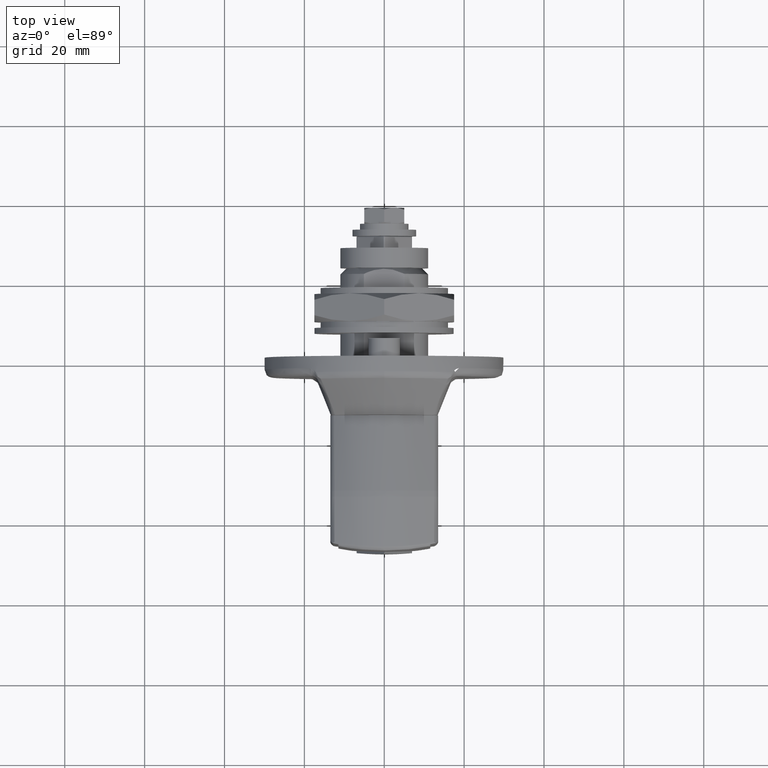
[diagram: clean part render]
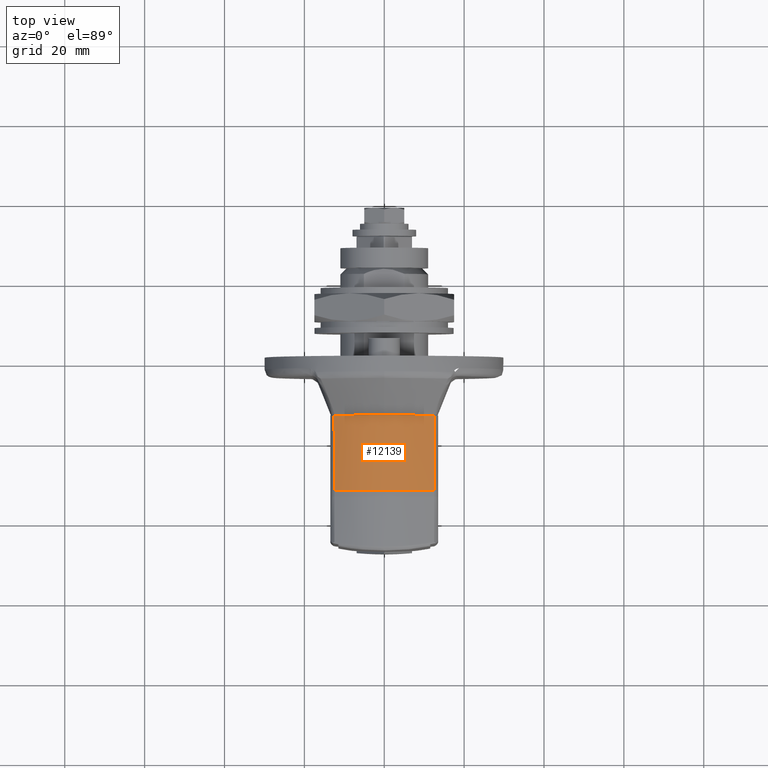
[diagram: same view with one face highlighted and labeled with its STEP entity id]
A machine part, top view. The second image highlights one B-rep face of the part: STEP entity #12139.
In plain terms, the highlighted face is a freeform B-spline surface patch.
Its self-contained STEP definition (entity closure, byte-faithful):
#9248=CARTESIAN_POINT('',(-33.551570999999903,-12.451023915774959,13.694896904843420));
#9249=VERTEX_POINT('',#9248);
#9276=CARTESIAN_POINT('',(-14.600000000000000,-12.581581215997600,10.253670146370959));
#9277=VERTEX_POINT('',#9276);
#9298=CARTESIAN_POINT('',(-33.551570999999903,-12.451023915774959,13.694896904843420));
#9299=CARTESIAN_POINT('',(-30.390432578655631,-12.470172268284280,13.135311509117370));
#9300=CARTESIAN_POINT('',(-27.230328310375889,-12.490466404607030,12.569918646015999));
#9301=CARTESIAN_POINT('',(-20.912886548344680,-12.533810144218750,11.424184596018440));
#9302=CARTESIAN_POINT('',(-17.755535767460952,-12.556858463855990,10.843865949674409));
#9303=CARTESIAN_POINT('',(-14.600000000000000,-12.581581215997600,10.253670146370959));
#9304=B_SPLINE_CURVE_WITH_KNOTS('',3,(#9298,#9299,#9300,#9301,#9302,#9303),.UNSPECIFIED.,.F.,.U.,(4,2,4),(0.0,0.500000000000000,1.0),.UNSPECIFIED.);
#9305=EDGE_CURVE('',#9249,#9277,#9304,.T.);
#9415=CARTESIAN_POINT('',(-33.551570999999903,12.451023898278860,13.694896914442220));
#9416=VERTEX_POINT('',#9415);
#9536=CARTESIAN_POINT('',(-14.600000000000000,12.581581215997600,10.253670146370959));
#9537=VERTEX_POINT('',#9536);
#9566=CARTESIAN_POINT('',(-14.600000000000000,12.581581215997600,10.253670146370959));
#9567=CARTESIAN_POINT('',(-17.755525036433369,12.556858547930631,10.843863942596091));
#9568=CARTESIAN_POINT('',(-20.912890956246880,12.533810109279750,11.424185421677670));
#9569=CARTESIAN_POINT('',(-27.230355872093650,12.490466220203670,12.569923618381120));
#9570=CARTESIAN_POINT('',(-30.390439076003119,12.470172228926870,13.135312659280091));
#9571=CARTESIAN_POINT('',(-33.551570999999903,12.451023898278860,13.694896914442220));
#9572=B_SPLINE_CURVE_WITH_KNOTS('',3,(#9566,#9567,#9568,#9569,#9570,#9571),.UNSPECIFIED.,.F.,.U.,(4,2,4),(0.0,0.500000000000000,1.0),.UNSPECIFIED.);
#9573=EDGE_CURVE('',#9537,#9416,#9572,.T.);
#12062=CARTESIAN_POINT('',(-14.600000000000000,-12.581581215997611,10.253670146370959));
#12063=CARTESIAN_POINT('',(-14.600000000000000,-8.673617E-015,18.475281127100271));
#12064=CARTESIAN_POINT('',(-14.600000000000000,12.581581215997600,10.253670146370959));
#12072=(BOUNDED_CURVE()B_SPLINE_CURVE(2,(#12062,#12063,#12064),.UNSPECIFIED.,.F.,.U.)CURVE()GEOMETRIC_REPRESENTATION_ITEM()QUASI_UNIFORM_CURVE()RATIONAL_B_SPLINE_CURVE((1.0,0.837116093320477,1.0))REPRESENTATION_ITEM(''));
#12073=EDGE_CURVE('',#9277,#9537,#12072,.T.);
#12107=CARTESIAN_POINT('',(-14.126210725000000,13.068686897362060,9.838675606183479));
#12108=CARTESIAN_POINT('',(-34.037205006874899,14.796976844303130,12.330027179570930));
#12109=CARTESIAN_POINT('',(-14.126210725000000,-0.368809820889037,19.160479376588256));
#12110=CARTESIAN_POINT('',(-34.037205006874899,-0.417583680939533,22.884608188444858));
#12111=CARTESIAN_POINT('',(-14.126210725000000,-13.557569450983610,9.489959069669435));
#12112=CARTESIAN_POINT('',(-34.037205006874899,-15.350512473577570,11.935194052375460));
#12120=(BOUNDED_SURFACE()B_SPLINE_SURFACE(1,2,((#12107,#12109,#12111),(#12108,#12110,#12112)),.UNSPECIFIED.,.F.,.F.,.U.)B_SPLINE_SURFACE_WITH_KNOTS((2,2),(3,3),(0.0,20.140543987086659),(0.0,33.239420985876727),.UNSPECIFIED.)GEOMETRIC_REPRESENTATION_ITEM()RATIONAL_B_SPLINE_SURFACE(((1.0,0.814115518356319,1.0),(1.0,0.814115518356319,1.0)))REPRESENTATION_ITEM('')SURFACE());
#12121=ORIENTED_EDGE('',*,*,#12073,.T.);
#12122=ORIENTED_EDGE('',*,*,#9573,.T.);
#12123=CARTESIAN_POINT('',(-33.551570999999903,-12.451023915774959,13.694896904843411));
#12124=CARTESIAN_POINT('',(-33.551570999999903,-0.000000011381137,20.525859700554896));
#12125=CARTESIAN_POINT('',(-33.551570999999903,12.451023898278850,13.694896914442239));
#12133=(BOUNDED_CURVE()B_SPLINE_CURVE(2,(#12123,#12124,#12125),.UNSPECIFIED.,.F.,.U.)CURVE()GEOMETRIC_REPRESENTATION_ITEM()QUASI_UNIFORM_CURVE()RATIONAL_B_SPLINE_CURVE((1.0,0.876723870618183,1.0))REPRESENTATION_ITEM(''));
#12134=EDGE_CURVE('',#9249,#9416,#12133,.T.);
#12135=ORIENTED_EDGE('',*,*,#12134,.F.);
#12136=ORIENTED_EDGE('',*,*,#9305,.T.);
#12137=EDGE_LOOP('',(#12121,#12122,#12135,#12136));
#12138=FACE_OUTER_BOUND('',#12137,.T.);
#12139=ADVANCED_FACE('',(#12138),#12120,.T.);